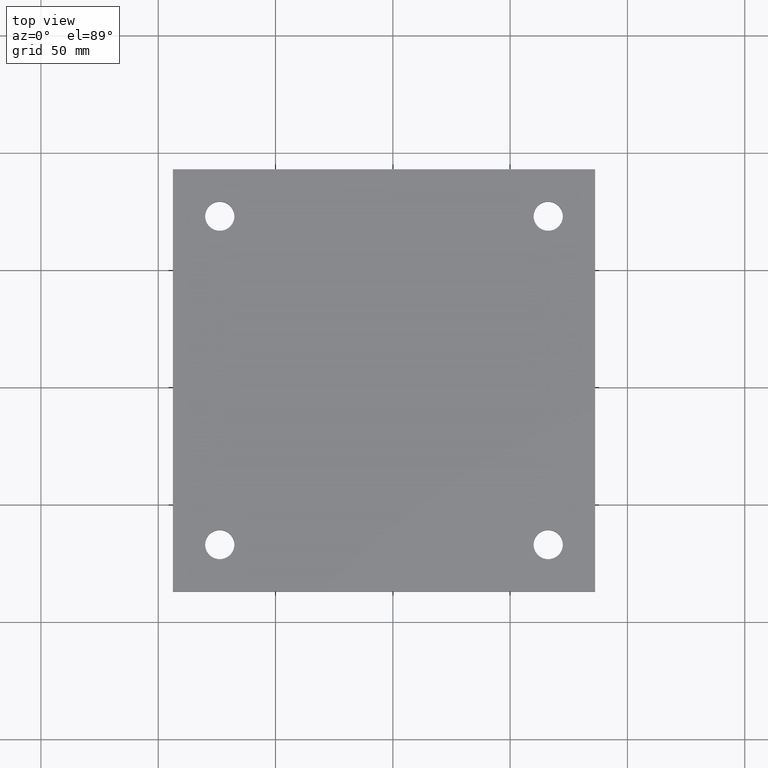
[diagram: clean part render]
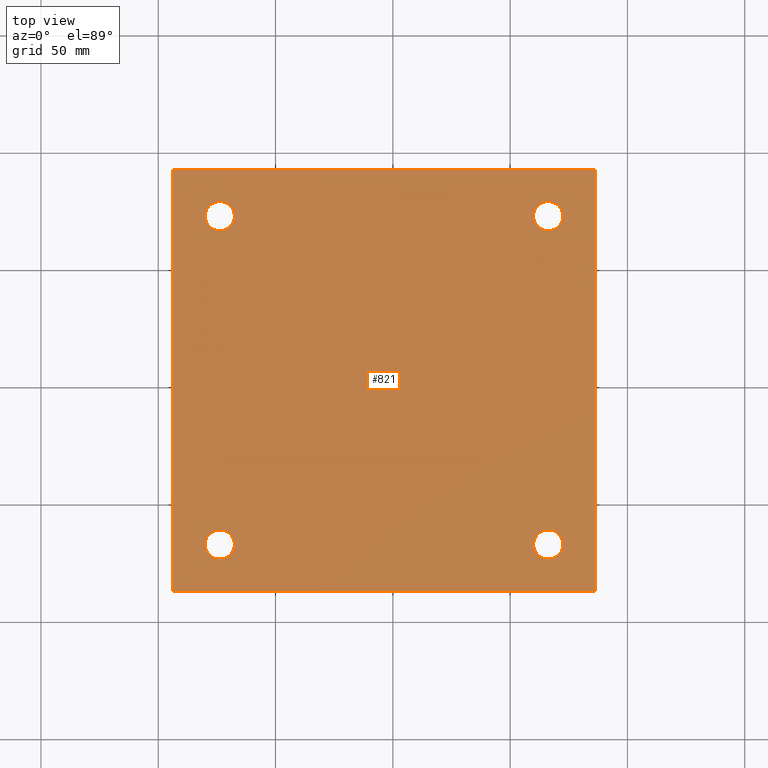
[diagram: same view with one face highlighted and labeled with its STEP entity id]
A machine part, top view. The second image highlights one B-rep face of the part: STEP entity #821.
In plain terms, the highlighted planar face has unit normal (0, 0, -1).
Its self-contained STEP definition (entity closure, byte-faithful):
#11 = AXIS2_PLACEMENT_3D ( 'NONE', #1221, #1222, #1223 ) ;
#117 = VERTEX_POINT ( 'NONE', #869 ) ;
#119 = VERTEX_POINT ( 'NONE', #871 ) ;
#120 = VERTEX_POINT ( 'NONE', #873 ) ;
#122 = VERTEX_POINT ( 'NONE', #875 ) ;
#123 = VERTEX_POINT ( 'NONE', #876 ) ;
#124 = VERTEX_POINT ( 'NONE', #877 ) ;
#125 = VERTEX_POINT ( 'NONE', #878 ) ;
#126 = VERTEX_POINT ( 'NONE', #879 ) ;
#130 = VERTEX_POINT ( 'NONE', #883 ) ;
#133 = VERTEX_POINT ( 'NONE', #886 ) ;
#134 = VERTEX_POINT ( 'NONE', #888 ) ;
#141 = CARTESIAN_POINT ( 'NONE',  ( 160.0000000000000000, 20.00000000000000000, 10.00000000000000000 ) ) ;
#142 = DIRECTION ( 'NONE',  ( 0.0000000000000000000, -0.0000000000000000000, 1.000000000000000000 ) ) ;
#143 = DIRECTION ( 'NONE',  ( 1.000000000000000000, 0.0000000000000000000, 0.0000000000000000000 ) ) ;
#144 = CARTESIAN_POINT ( 'NONE',  ( 160.0000000000000000, 160.0000000000000000, 10.00000000000000000 ) ) ;
#145 = DIRECTION ( 'NONE',  ( 0.0000000000000000000, -0.0000000000000000000, 1.000000000000000000 ) ) ;
#146 = DIRECTION ( 'NONE',  ( 1.000000000000000000, 0.0000000000000000000, 0.0000000000000000000 ) ) ;
#147 = CARTESIAN_POINT ( 'NONE',  ( 20.00000000000000000, 160.0000000000000000, 10.00000000000000000 ) ) ;
#148 = DIRECTION ( 'NONE',  ( 0.0000000000000000000, 0.0000000000000000000, 1.000000000000000000 ) ) ;
#149 = DIRECTION ( 'NONE',  ( 1.000000000000000000, 0.0000000000000000000, 0.0000000000000000000 ) ) ;
#150 = CARTESIAN_POINT ( 'NONE',  ( 20.00000000000000000, 20.00000000000000000, 10.00000000000000000 ) ) ;
#151 = DIRECTION ( 'NONE',  ( 0.0000000000000000000, 0.0000000000000000000, 1.000000000000000000 ) ) ;
#152 = DIRECTION ( 'NONE',  ( 1.000000000000000000, 0.0000000000000000000, 0.0000000000000000000 ) ) ;
#167 = CARTESIAN_POINT ( 'NONE',  ( 20.00000000000000000, 160.0000000000000000, 10.00000000000000000 ) ) ;
#168 = DIRECTION ( 'NONE',  ( 0.0000000000000000000, 0.0000000000000000000, 1.000000000000000000 ) ) ;
#169 = DIRECTION ( 'NONE',  ( 1.000000000000000000, 0.0000000000000000000, 0.0000000000000000000 ) ) ;
#176 = EDGE_CURVE ( 'NONE', #117, #119, #1070, .T. ) ;
#177 = EDGE_CURVE ( 'NONE', #134, #130, #996, .T. ) ;
#178 = EDGE_CURVE ( 'NONE', #125, #123, #1012, .T. ) ;
#179 = EDGE_CURVE ( 'NONE', #126, #237, #899, .T. ) ;
#186 = EDGE_CURVE ( 'NONE', #123, #125, #928, .T. ) ;
#188 = EDGE_CURVE ( 'NONE', #237, #126, #932, .T. ) ;
#190 = EDGE_CURVE ( 'NONE', #124, #133, #917, .T. ) ;
#193 = EDGE_CURVE ( 'NONE', #133, #120, #925, .T. ) ;
#198 = EDGE_CURVE ( 'NONE', #119, #117, #1097, .T. ) ;
#206 = EDGE_CURVE ( 'NONE', #130, #134, #1085, .T. ) ;
#213 = EDGE_CURVE ( 'NONE', #122, #124, #744, .T. ) ;
#217 = EDGE_CURVE ( 'NONE', #120, #122, #829, .T. ) ;
#237 = VERTEX_POINT ( 'NONE', #1264 ) ;
#351 = FACE_BOUND ( 'NONE', #1110, .T. ) ;
#352 = FACE_BOUND ( 'NONE', #1112, .T. ) ;
#353 = FACE_BOUND ( 'NONE', #1113, .T. ) ;
#354 = FACE_BOUND ( 'NONE', #1114, .T. ) ;
#501 = FACE_OUTER_BOUND ( 'NONE', #1115, .T. ) ;
#580 = AXIS2_PLACEMENT_3D ( 'NONE', #632, #633, #634 ) ;
#585 = AXIS2_PLACEMENT_3D ( 'NONE', #974, #975, #977 ) ;
#587 = AXIS2_PLACEMENT_3D ( 'NONE', #944, #945, #946 ) ;
#588 = AXIS2_PLACEMENT_3D ( 'NONE', #167, #168, #169 ) ;
#591 = AXIS2_PLACEMENT_3D ( 'NONE', #150, #151, #152 ) ;
#592 = AXIS2_PLACEMENT_3D ( 'NONE', #147, #148, #149 ) ;
#593 = AXIS2_PLACEMENT_3D ( 'NONE', #144, #145, #146 ) ;
#594 = AXIS2_PLACEMENT_3D ( 'NONE', #141, #142, #143 ) ;
#632 = CARTESIAN_POINT ( 'NONE',  ( 160.0000000000000000, 160.0000000000000000, 10.00000000000000000 ) ) ;
#633 = DIRECTION ( 'NONE',  ( 0.0000000000000000000, -0.0000000000000000000, 1.000000000000000000 ) ) ;
#634 = DIRECTION ( 'NONE',  ( 1.000000000000000000, 0.0000000000000000000, 0.0000000000000000000 ) ) ;
#648 = CARTESIAN_POINT ( 'NONE',  ( 0.0000000000000000000, 90.00000000000000000, 10.00000000000000000 ) ) ;
#649 = DIRECTION ( 'NONE',  ( 0.0000000000000000000, 1.000000000000000000, 0.0000000000000000000 ) ) ;
#657 = CARTESIAN_POINT ( 'NONE',  ( 90.00000000000000000, 0.0000000000000000000, 10.00000000000000000 ) ) ;
#658 = DIRECTION ( 'NONE',  ( -1.000000000000000000, 0.0000000000000000000, 0.0000000000000000000 ) ) ;
#742 = VECTOR ( 'NONE', #649, 1000.000000000000000 ) ;
#744 = LINE ( 'NONE', #648, #742 ) ;
#821 = ADVANCED_FACE ( 'NONE', ( #351, #352, #353, #354, #501 ), #1220, .F. ) ;
#828 = VECTOR ( 'NONE', #658, 1000.000000000000000 ) ;
#829 = LINE ( 'NONE', #657, #828 ) ;
#869 = CARTESIAN_POINT ( 'NONE',  ( 166.2500000000000000, 20.00000000000000000, 10.00000000000000000 ) ) ;
#871 = CARTESIAN_POINT ( 'NONE',  ( 153.7500000000000000, 20.00000000000000000, 10.00000000000000000 ) ) ;
#873 = CARTESIAN_POINT ( 'NONE',  ( 180.0000000000000000, 5.204170427930421300E-015, 10.00000000000000200 ) ) ;
#875 = CARTESIAN_POINT ( 'NONE',  ( 5.204170427930421300E-015, 5.204170427930421300E-015, 10.00000000000000200 ) ) ;
#876 = CARTESIAN_POINT ( 'NONE',  ( 13.75000000000000200, 160.0000000000000000, 10.00000000000000000 ) ) ;
#877 = CARTESIAN_POINT ( 'NONE',  ( 1.734723475976807100E-015, 180.0000000000000000, 10.00000000000000200 ) ) ;
#878 = CARTESIAN_POINT ( 'NONE',  ( 26.25000000000000000, 160.0000000000000000, 10.00000000000000000 ) ) ;
#879 = CARTESIAN_POINT ( 'NONE',  ( 26.25000000000000000, 20.00000000000000000, 10.00000000000000000 ) ) ;
#883 = CARTESIAN_POINT ( 'NONE',  ( 153.7500000000000000, 160.0000000000000000, 10.00000000000000000 ) ) ;
#886 = CARTESIAN_POINT ( 'NONE',  ( 180.0000000000000000, 180.0000000000000000, 10.00000000000000200 ) ) ;
#888 = CARTESIAN_POINT ( 'NONE',  ( 166.2500000000000000, 160.0000000000000000, 10.00000000000000000 ) ) ;
#899 = CIRCLE ( 'NONE', #591, 6.249999999999998200 ) ;
#917 = LINE ( 'NONE', #951, #918 ) ;
#918 = VECTOR ( 'NONE', #952, 1000.000000000000000 ) ;
#925 = LINE ( 'NONE', #959, #926 ) ;
#926 = VECTOR ( 'NONE', #960, 1000.000000000000000 ) ;
#928 = CIRCLE ( 'NONE', #588, 6.249999999999998200 ) ;
#932 = CIRCLE ( 'NONE', #587, 6.249999999999998200 ) ;
#936 = ORIENTED_EDGE ( 'NONE', *, *, #178, .F. ) ;
#937 = ORIENTED_EDGE ( 'NONE', *, *, #188, .F. ) ;
#938 = ORIENTED_EDGE ( 'NONE', *, *, #179, .F. ) ;
#939 = ORIENTED_EDGE ( 'NONE', *, *, #198, .F. ) ;
#941 = ORIENTED_EDGE ( 'NONE', *, *, #176, .F. ) ;
#944 = CARTESIAN_POINT ( 'NONE',  ( 20.00000000000000000, 20.00000000000000000, 10.00000000000000000 ) ) ;
#945 = DIRECTION ( 'NONE',  ( 0.0000000000000000000, 0.0000000000000000000, 1.000000000000000000 ) ) ;
#946 = DIRECTION ( 'NONE',  ( 1.000000000000000000, 0.0000000000000000000, 0.0000000000000000000 ) ) ;
#947 = ORIENTED_EDGE ( 'NONE', *, *, #206, .F. ) ;
#949 = ORIENTED_EDGE ( 'NONE', *, *, #177, .F. ) ;
#951 = CARTESIAN_POINT ( 'NONE',  ( 90.00000000000000000, 180.0000000000000000, 10.00000000000000000 ) ) ;
#952 = DIRECTION ( 'NONE',  ( 1.000000000000000000, -0.0000000000000000000, -0.0000000000000000000 ) ) ;
#959 = CARTESIAN_POINT ( 'NONE',  ( 180.0000000000000000, 90.00000000000000000, 10.00000000000000000 ) ) ;
#960 = DIRECTION ( 'NONE',  ( -0.0000000000000000000, -1.000000000000000000, -0.0000000000000000000 ) ) ;
#974 = CARTESIAN_POINT ( 'NONE',  ( 160.0000000000000000, 20.00000000000000000, 10.00000000000000000 ) ) ;
#975 = DIRECTION ( 'NONE',  ( 0.0000000000000000000, -0.0000000000000000000, 1.000000000000000000 ) ) ;
#977 = DIRECTION ( 'NONE',  ( 1.000000000000000000, 0.0000000000000000000, 0.0000000000000000000 ) ) ;
#996 = CIRCLE ( 'NONE', #593, 6.250000000000005300 ) ;
#1012 = CIRCLE ( 'NONE', #592, 6.249999999999998200 ) ;
#1070 = CIRCLE ( 'NONE', #594, 6.250000000000005300 ) ;
#1085 = CIRCLE ( 'NONE', #580, 6.250000000000005300 ) ;
#1086 = ORIENTED_EDGE ( 'NONE', *, *, #186, .F. ) ;
#1087 = ORIENTED_EDGE ( 'NONE', *, *, #193, .F. ) ;
#1089 = ORIENTED_EDGE ( 'NONE', *, *, #217, .F. ) ;
#1090 = ORIENTED_EDGE ( 'NONE', *, *, #190, .F. ) ;
#1095 = ORIENTED_EDGE ( 'NONE', *, *, #213, .F. ) ;
#1097 = CIRCLE ( 'NONE', #585, 6.250000000000005300 ) ;
#1110 = EDGE_LOOP ( 'NONE', ( #949, #947 ) ) ;
#1112 = EDGE_LOOP ( 'NONE', ( #941, #939 ) ) ;
#1113 = EDGE_LOOP ( 'NONE', ( #938, #937 ) ) ;
#1114 = EDGE_LOOP ( 'NONE', ( #936, #1086 ) ) ;
#1115 = EDGE_LOOP ( 'NONE', ( #1089, #1087, #1090, #1095 ) ) ;
#1220 = PLANE ( 'NONE',  #11 ) ;
#1221 = CARTESIAN_POINT ( 'NONE',  ( 180.0000000000000000, 0.0000000000000000000, 10.00000000000000000 ) ) ;
#1222 = DIRECTION ( 'NONE',  ( 0.0000000000000000000, 0.0000000000000000000, -1.000000000000000000 ) ) ;
#1223 = DIRECTION ( 'NONE',  ( -1.000000000000000000, 0.0000000000000000000, 0.0000000000000000000 ) ) ;
#1264 = CARTESIAN_POINT ( 'NONE',  ( 13.75000000000000200, 20.00000000000000000, 10.00000000000000000 ) ) ;